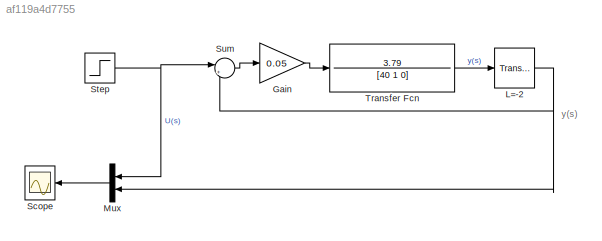
MODEL slx_af119a4d7755
KIND model
CONFIG AbsTol = auto
CONFIG EnableMultiTasking = off
CONFIG FixedStep = 1e-3
CONFIG MaxStep = auto
CONFIG MinStep = auto
CONFIG RelTol = 1e-3
CONFIG SampleTimeConstraint = Unconstrained
CONFIG SolverName = FixedStepAuto
CONFIG StartTime = 0.0
CONFIG StopTime = 200
BLOCK [Gain] Gain
  Gain = 0.05
BLOCK [TransportDelay] L=-2
  DelayTime = 2
  Ports = [1, 1]
BLOCK [Mux] Mux
  DisplayOption = bar
  Inputs = 2
  Ports = [2, 1]
BLOCK [Scope] Scope
  Floating = off
  NumInputPorts = 1
  Ports = [1]
  ScopeSpecificationString = Simulink.scopes.TimeScopeBlockCfg('CurrentConfiguration', extmgr.ConfigurationSet(extmgr.Configuration('Core','General UI',true),extmgr.Configuration('Core','Source UI',true),extmgr.Configuration('Sources','WiredSimulink',true),extmgr.Configuration('Visuals','Time Domain',true,'SerializedDisplays',{struct('MinYLimReal','-0.00234','MaxYLimReal','0.00312','YLabelReal','','MinYLimMag','0.00000','MaxY...<+1803ch>
BLOCK [Step] Step
  SampleTime = 0
BLOCK [Sum] Sum
  Inputs = |+-
  Ports = [2, 1]
BLOCK [TransferFcn] Transfer Fcn
  Denominator = [40 1 0]
  Numerator = 3.79
ANNOTATION (root): y(s)
LINE Gain:1 -> Transfer Fcn:1
NET L=-2:1 -> Mux:2, Sum:2
LINE Mux:1 -> Scope:1
NET Step:1 -> Mux:1, Sum:1
LINE Sum:1 -> Gain:1
LINE Transfer Fcn:1 -> L=-2:1
note: NET lines group one-source signal fan-out (src -> all destinations, sorted); 1:1 wires keep LINE
